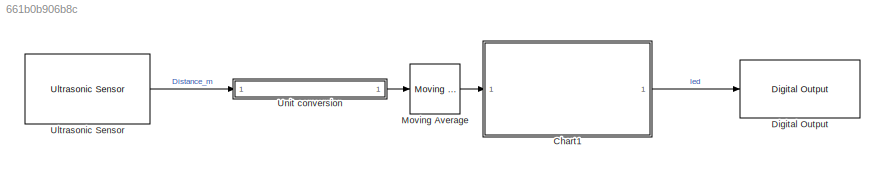
MODEL slx_661b0b906b8c
KIND model
CONFIG AbsTol = auto
CONFIG EnableMultiTasking = on
CONFIG FixedStep = step_size
CONFIG MaxStep = auto
CONFIG MinStep = auto
CONFIG RelTol = 1e-3
CONFIG SampleTimeConstraint = Unconstrained
CONFIG SolverName = FixedStepDiscrete
CONFIG StartTime = 0.0
CONFIG StopTime = inf
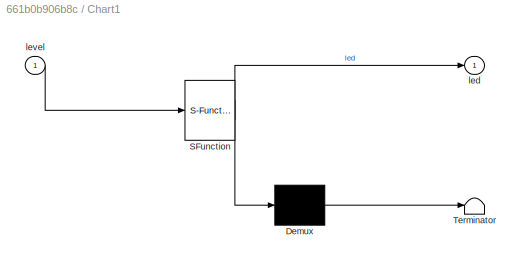
BLOCK [SubSystem] Chart1
  ErrorFcn = Stateflow.Translate.translate
  PermitHierarchicalResolution = ExplicitOnly
  Ports = [1, 1]
  RequestExecContextInheritance = off
  SFBlockType = Chart
  TreatAsAtomicUnit = on
BLOCK [Demux] Chart1/ Demux 
  Outputs = 1
  Ports = [1, 1]
BLOCK [S-Function] Chart1/ SFunction 
  EnableBusSupport = on
  FunctionName = sf_sfun
  PortCounts = [1 2]
  Ports = [1, 2]
  SFcnIsStateOwnerBlock = off
  SFunctionDeploymentMode = off
  Tag = Stateflow S-Function 1
BLOCK [Terminator] Chart1/ Terminator 
BLOCK [Outport] Chart1/led
BLOCK [Inport] Chart1/level
BLOCK [Reference] Digital Output  REF=arduinolib/Digital Output
  Ports = [1]
  SourceBlock = arduinolib/Digital Output
  SourceProductBaseCode = ARDUINO
  SourceType = Arduino Digital Output
BLOCK [Reference] Moving Average  REF=dspstat3/Moving
Average
  Ports = [1, 1]
  SourceBlock = dspstat3/Moving\nAverage
  SourceProductBaseCode = DS
  SourceType = dsp.simulink.MovingAverage
BLOCK [Reference] Ultrasonic Sensor  REF=arduinosensorlib/Ultrasonic Sensor
  Ports = [0, 1]
  SourceBlock = arduinosensorlib/Ultrasonic Sensor
  SourceProductBaseCode = ARDUINO
  SourceType = Arduino Ultrasonic Sensor
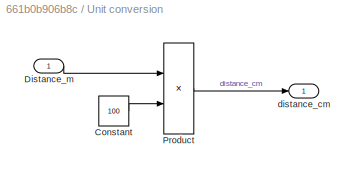
BLOCK [SubSystem] Unit conversion
  Ports = [1, 1]
  RequestExecContextInheritance = off
BLOCK [Constant] Unit conversion/Constant
  Value = 100
BLOCK [Inport] Unit conversion/Distance_m
BLOCK [Product] Unit conversion/Product
  Ports = [2, 1]
BLOCK [Outport] Unit conversion/distance_cm
LINE Chart1:1 -> Digital Output:1
LINE Moving Average:1 -> Chart1:1
LINE Ultrasonic Sensor:1 -> Unit conversion:1
LINE Unit conversion/Constant:1 -> Unit conversion/Product:2
LINE Unit conversion/Distance_m:1 -> Unit conversion/Product:1
LINE Unit conversion/Product:1 -> Unit conversion/distance_cm:1
LINE Unit conversion:1 -> Moving Average:1
CHART Chart1 states=9 transitions=18
  STATE_LABEL 'BLINK_OUTRANGE\nfrequency = 0.5;\n'
  STATE_LABEL 'LED_OFF\nentry:\nled = false;'
  STATE_LABEL 'LED_ON\nentry:\nled = true;'
  STATE_LABEL 'after(frequency/2, sec)'
  STATE_LABEL 'after(frequency/2, sec)'
  STATE_LABEL 'LED_OFF\nentry:\nled = false;'
  STATE_LABEL 'LED_ON\nentry:\nled = true;'
  STATE_LABEL 'BLINK_INRANGE\nfrequency = 0.1;\n'
  STATE_LABEL 'LED_OFF\nentry:\nled = false;'
  STATE_LABEL 'LED_ON\nentry:\nled = true;'
  STATE_LABEL 'after(frequency - ((level*frequency)/100), sec)'
  STATE_LABEL 'after((level*frequency)/100, sec)'
  STATE_LABEL 'LED_OFF\nentry:\nled = false;'
  STATE_LABEL 'LED_ON\nentry:\nled = true;'
  STATE_LABEL 'DISCONNECTED_SENSOR\nfrequency = 1;'
  STATE_LABEL 'LED_OFF\nentry:\nled = false;'
  STATE_LABEL 'LED_ON\nentry:\nled = true;'
  STATE_LABEL 'after(frequency/2, sec)'
  STATE_LABEL 'after(frequency/2, sec)'
  STATE_LABEL 'LED_OFF\nentry:\nled = false;'
  STATE_LABEL 'LED_ON\nentry:\nled = true;'
CHART  states=0 transitions=0
